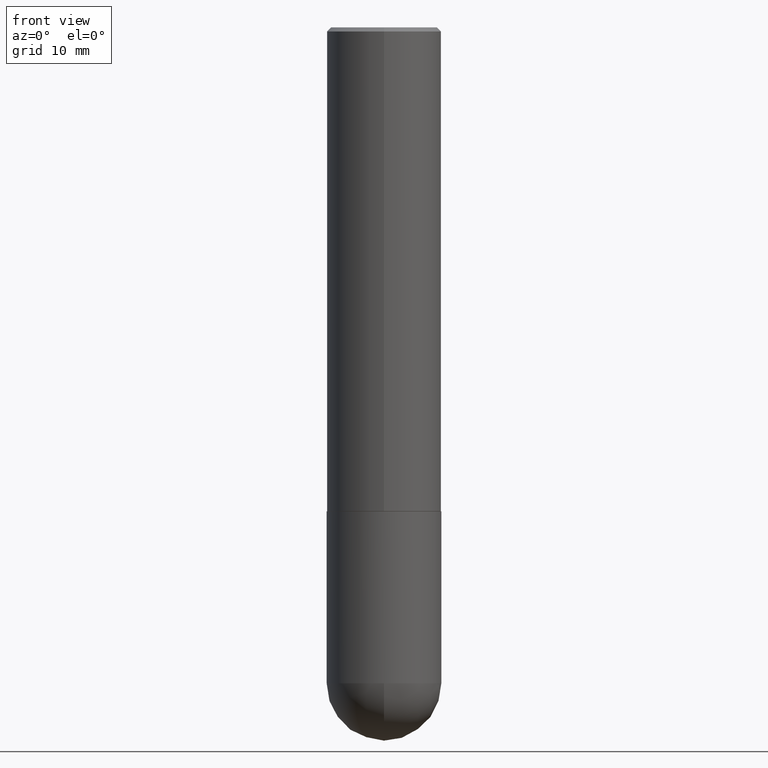
[diagram: clean part render]
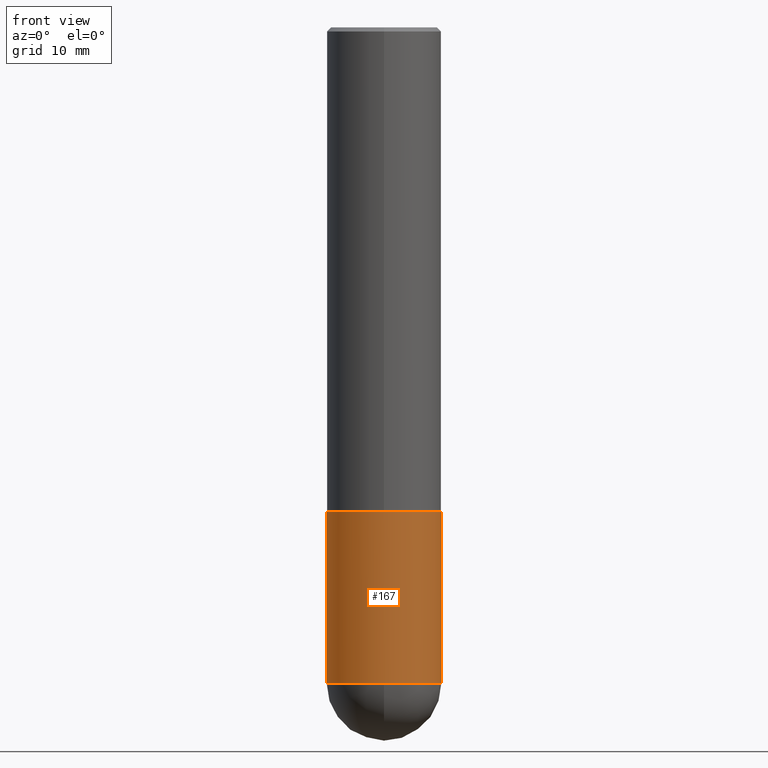
[diagram: same view with one face highlighted and labeled with its STEP entity id]
A machine part, front view. The second image highlights one B-rep face of the part: STEP entity #167.
In plain terms, the highlighted cylindrical surface (partial cylindrical patch) has radius 7.1438 mm, axis along (-0, 0, 1).
Its self-contained STEP definition (entity closure, byte-faithful):
#8 = DIRECTION ( 'NONE',  ( -2.445468806185136597E-29, 3.491481338843145583E-15, 1.000000000000000000 ) ) ;
#28 = VERTEX_POINT ( 'NONE', #324 ) ;
#36 = CARTESIAN_POINT ( 'NONE',  ( 0.2812500000000000555, -1.963958253099262907E-15, 1.371424718192607012E-29 ) ) ;
#38 = DIRECTION ( 'NONE',  ( 1.000000000000000000, -6.982962677686268288E-15, 0.000000000000000000 ) ) ;
#40 = DIRECTION ( 'NONE',  ( -2.445468806185136877E-29, 3.491481338843145188E-15, 1.000000000000000000 ) ) ;
#45 = CIRCLE ( 'NONE', #58, 0.2812500000000000555 ) ;
#58 = AXIS2_PLACEMENT_3D ( 'NONE', #169, #191, #38 ) ;
#63 = FACE_OUTER_BOUND ( 'NONE', #320, .T. ) ;
#91 = ORIENTED_EDGE ( 'NONE', *, *, #314, .T. ) ;
#100 = DIRECTION ( 'NONE',  ( 1.000000000000000000, -6.982962677686268288E-15, 0.000000000000000000 ) ) ;
#110 = VECTOR ( 'NONE', #299, 39.37007874015748143 ) ;
#116 = CARTESIAN_POINT ( 'NONE',  ( -1.998401444325206042E-15, -0.2812500000000116573, -3.218749999999998668 ) ) ;
#122 = CYLINDRICAL_SURFACE ( 'NONE', #168, 0.2812500000000000555 ) ;
#129 = VERTEX_POINT ( 'NONE', #182 ) ;
#130 = LINE ( 'NONE', #36, #186 ) ;
#134 = CARTESIAN_POINT ( 'NONE',  ( 0.2812500000000000555, -1.172919512267618602E-14, -3.218749999999999556 ) ) ;
#135 = ORIENTED_EDGE ( 'NONE', *, *, #361, .T. ) ;
#138 = AXIS2_PLACEMENT_3D ( 'NONE', #221, #192, #279 ) ;
#151 = VERTEX_POINT ( 'NONE', #187 ) ;
#167 = ADVANCED_FACE ( 'NONE', ( #63 ), #122, .T. ) ;
#168 = AXIS2_PLACEMENT_3D ( 'NONE', #212, #403, #215 ) ;
#169 = CARTESIAN_POINT ( 'NONE',  ( 7.871352719908407300E-29, -1.123820555940137375E-14, -3.218749999999999556 ) ) ;
#172 = CARTESIAN_POINT ( 'NONE',  ( -0.2812500000000000555, 1.998401444325282167E-15, -1.383450494134192269E-29 ) ) ;
#181 = ORIENTED_EDGE ( 'NONE', *, *, #329, .T. ) ;
#182 = CARTESIAN_POINT ( 'NONE',  ( 0.2812500000000000000, -1.025622643285173184E-14, -2.374999999999999556 ) ) ;
#186 = VECTOR ( 'NONE', #40, 39.37007874015748143 ) ;
#187 = CARTESIAN_POINT ( 'NONE',  ( -0.2812500000000000000, -7.766835425251639371E-15, -2.374999999999999556 ) ) ;
#192 = DIRECTION ( 'NONE',  ( -2.445468806185136597E-29, 3.491481338843145583E-15, 1.000000000000000000 ) ) ;
#191 = DIRECTION ( 'NONE',  ( -2.445468806185136597E-29, 3.491481338843145583E-15, 1.000000000000000000 ) ) ;
#212 = CARTESIAN_POINT ( 'NONE',  ( 0.000000000000000000, 0.000000000000000000, 0.000000000000000000 ) ) ;
#215 = DIRECTION ( 'NONE',  ( 1.000000000000000000, -6.982962677686266711E-15, 4.876176775795935232E-29 ) ) ;
#221 = CARTESIAN_POINT ( 'NONE',  ( 5.807988414689698296E-29, -8.292268179752468540E-15, -2.374999999999999556 ) ) ;
#225 = CARTESIAN_POINT ( 'NONE',  ( 7.871352719908407300E-29, -1.123820555940137375E-14, -3.218749999999999556 ) ) ;
#231 = VERTEX_POINT ( 'NONE', #116 ) ;
#233 = CIRCLE ( 'NONE', #138, 0.2812500000000000000 ) ;
#258 = CIRCLE ( 'NONE', #365, 0.2812500000000000555 ) ;
#279 = DIRECTION ( 'NONE',  ( 1.000000000000000000, -6.982962677686266711E-15, 0.000000000000000000 ) ) ;
#288 = EDGE_CURVE ( 'NONE', #151, #129, #233, .T. ) ;
#296 = ORIENTED_EDGE ( 'NONE', *, *, #288, .F. ) ;
#299 = DIRECTION ( 'NONE',  ( -2.445468806185136877E-29, 3.491481338843145188E-15, 1.000000000000000000 ) ) ;
#314 = EDGE_CURVE ( 'NONE', #28, #231, #45, .T. ) ;
#320 = EDGE_LOOP ( 'NONE', ( #368, #91, #135, #181, #296 ) ) ;
#324 = CARTESIAN_POINT ( 'NONE',  ( -0.2812500000000000555, -7.766835425251640949E-15, -3.218749999999999556 ) ) ;
#329 = EDGE_CURVE ( 'NONE', #347, #129, #130, .T. ) ;
#335 = EDGE_CURVE ( 'NONE', #28, #151, #376, .T. ) ;
#347 = VERTEX_POINT ( 'NONE', #134 ) ;
#361 = EDGE_CURVE ( 'NONE', #231, #347, #258, .T. ) ;
#365 = AXIS2_PLACEMENT_3D ( 'NONE', #225, #8, #100 ) ;
#368 = ORIENTED_EDGE ( 'NONE', *, *, #335, .F. ) ;
#376 = LINE ( 'NONE', #172, #110 ) ;
#403 = DIRECTION ( 'NONE',  ( -2.445468806185136597E-29, 3.491481338843145583E-15, 1.000000000000000000 ) ) ;